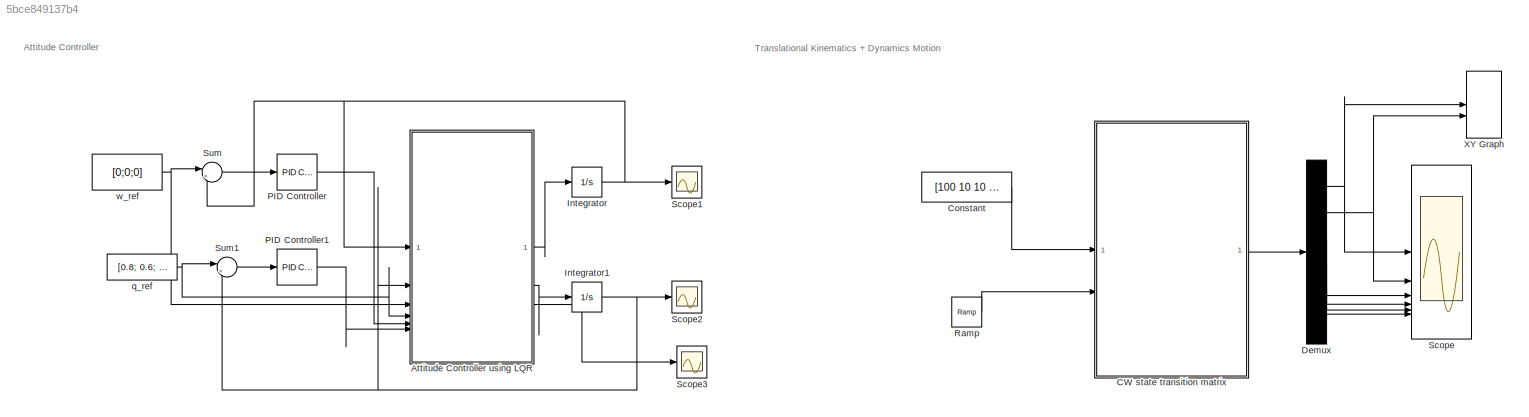
MODEL slx_5bce849137b4
KIND model
CONFIG AbsTol = auto
CONFIG EnableMultiTasking = off
CONFIG FixedStep = auto
CONFIG MaxStep = auto
CONFIG MinStep = auto
CONFIG RelTol = 1e-3
CONFIG SampleTimeConstraint = Unconstrained
CONFIG SolverName = VariableStepAuto
CONFIG StartTime = 0.0
CONFIG StopTime = 100
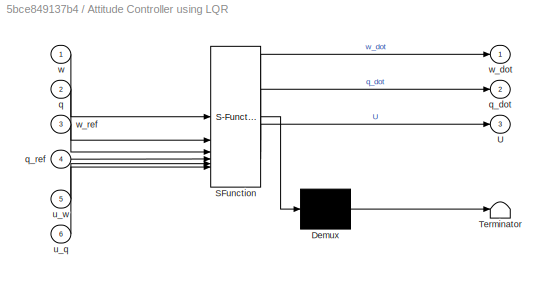
BLOCK [SubSystem] Attitude Controller using LQR
  ErrorFcn = Stateflow.Translate.translate
  PermitHierarchicalResolution = ExplicitOnly
  SFBlockType = MATLAB Function
  TreatAsAtomicUnit = on
BLOCK [Demux] Attitude Controller using LQR/ Demux 
  Outputs = 1
BLOCK [S-Function] Attitude Controller using LQR/ SFunction 
  EnableBusSupport = on
  FunctionName = sf_sfun
  PortCounts = [6 4]
  SFcnIsStateOwnerBlock = off
  SFunctionDeploymentMode = off
  Tag = Stateflow S-Function 1
BLOCK [Terminator] Attitude Controller using LQR/ Terminator 
BLOCK [Outport] Attitude Controller using LQR/U
  Port = 3
BLOCK [Inport] Attitude Controller using LQR/q
  Port = 2
BLOCK [Outport] Attitude Controller using LQR/q_dot
  Port = 2
BLOCK [Inport] Attitude Controller using LQR/q_ref
  Port = 4
BLOCK [Inport] Attitude Controller using LQR/u_q
  Port = 6
BLOCK [Inport] Attitude Controller using LQR/u_w
  Port = 5
BLOCK [Inport] Attitude Controller using LQR/w
BLOCK [Outport] Attitude Controller using LQR/w_dot
BLOCK [Inport] Attitude Controller using LQR/w_ref
  Port = 3
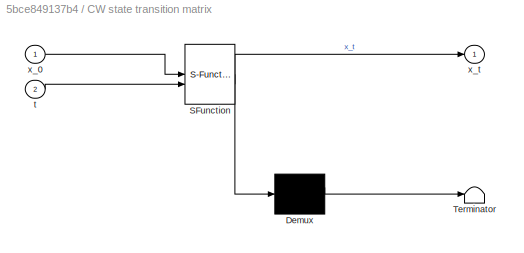
BLOCK [SubSystem] CW state transition matrix
  ErrorFcn = Stateflow.Translate.translate
  PermitHierarchicalResolution = ExplicitOnly
  SFBlockType = MATLAB Function
  TreatAsAtomicUnit = on
BLOCK [Demux] CW state transition matrix/ Demux 
  Outputs = 1
BLOCK [S-Function] CW state transition matrix/ SFunction 
  EnableBusSupport = on
  FunctionName = sf_sfun
  PortCounts = [2 2]
  SFcnIsStateOwnerBlock = off
  SFunctionDeploymentMode = off
  Tag = Stateflow S-Function 2
BLOCK [Terminator] CW state transition matrix/ Terminator 
BLOCK [Inport] CW state transition matrix/t
  Port = 2
BLOCK [Inport] CW state transition matrix/x_0
BLOCK [Outport] CW state transition matrix/x_t
BLOCK [Constant] Constant
  Value = [100 10 10 0.1 0.1 0.1]
BLOCK [Demux] Demux
  Outputs = 6
BLOCK [Integrator] Integrator
  InitialCondition = [0.7; 0.5; 0.2]
BLOCK [Integrator] Integrator1
  InitialCondition = [0.4; -0.5; 0.7]
BLOCK [Reference] PID Controller  REF=slpidlib/PID Controller
  SourceBlock = slpidlib/PID Controller
  SourceType = PID 1dof
BLOCK [Reference] PID Controller1  REF=slpidlib/PID Controller
  SourceBlock = slpidlib/PID Controller
  SourceType = PID 1dof
BLOCK [Reference] Ramp  REF=simulink/Sources/Ramp
  SourceBlock = simulink/Sources/Ramp
  SourceType = Ramp
BLOCK [Scope] Scope
  Floating = off
  NumInputPorts = 6
  ScopeSpecificationString = Simulink.scopes.TimeScopeBlockCfg('CurrentConfiguration', extmgr.ConfigurationSet(extmgr.Configuration('Core','General UI',true),extmgr.Configuration('Core','Source UI',true),extmgr.Configuration('Sources','WiredSimulink',true),extmgr.Configuration('Visuals','Time Domain',true,'SerializedDisplays',{struct('MinYLimReal','98.30222','MaxYLimReal','115.28002','YLabelReal','','MinYLimMag','98.30222','M...<+4873ch>
BLOCK [Scope] Scope1
  Floating = off
  NumInputPorts = 1
  ScopeSpecificationString = Simulink.scopes.TimeScopeBlockCfg('CurrentConfiguration', extmgr.ConfigurationSet(extmgr.Configuration('Core','General UI',true),extmgr.Configuration('Core','Source UI',true),extmgr.Configuration('Sources','WiredSimulink',true,'DataLoggingVariableName','ScopeData1'),extmgr.Configuration('Visuals','Time Domain',true,'SerializedDisplays',{struct('MinYLimReal','-0.24444','MaxYLimReal','0.80494','YLab...<+1455ch>
BLOCK [Scope] Scope2
  Floating = off
  NumInputPorts = 1
  ScopeSpecificationString = Simulink.scopes.TimeScopeBlockCfg('CurrentConfiguration', extmgr.ConfigurationSet(extmgr.Configuration('Core','General UI',true),extmgr.Configuration('Core','Source UI',true),extmgr.Configuration('Sources','WiredSimulink',true,'DataLoggingVariableName','ScopeData2'),extmgr.Configuration('Visuals','Time Domain',true,'SerializedDisplays',{struct('MinYLimReal','-1.42359','MaxYLimReal','7.81231','YLab...<+1404ch>
BLOCK [Scope] Scope3
  Floating = off
  NumInputPorts = 1
  ScopeSpecificationString = Simulink.scopes.TimeScopeBlockCfg('CurrentConfiguration', extmgr.ConfigurationSet(extmgr.Configuration('Core','General UI',true),extmgr.Configuration('Core','Source UI',true),extmgr.Configuration('Sources','WiredSimulink',true,'DataLoggingVariableName','ScopeData3'),extmgr.Configuration('Visuals','Time Domain',true,'SerializedDisplays',{struct('MinYLimReal','-0.6888','MaxYLimReal','0.09773','YLabe...<+1460ch>
BLOCK [Sum] Sum
  Inputs = |+-
BLOCK [Sum] Sum1
  Inputs = |+-
BLOCK [Record] XY Graph
  CompatibilityTag = XY
  FileSettingsInternal = {"entries":[{"content":{"excelSettings":{"content":{},"type":"Streamout.ExcelSettings"}},"type":"Streamout.FileSettingStorage","uuid":"855e9897-745d-4af3-99f6-1f36c731b809"}],"packageUris":["http://schema.mathworks.com/mf0/streamout_blocks/R2020a"],"version":"1.0"}
  Layout = [1 1]
  SignalsInternal = {"entries":[{"content":{"signals":[{"content":{"blockPath":["CW/XY Graph"],"channel":[],"dimensions":[1,1],"domain":"CW/XY Graph","lineColor":"#a2142f","plots":[1],"port":1,"sid":[""],"signalID":562,"signalName":"Demux:1"},"type":"RecordBlkView.Signal","uuid":"0cacc051-88ad-44ad-a2ea-73e43749a508"},{"content":{"blockPath":["CW/XY Graph"],"channel":[],"dimensions":[1,1],"domain":"CW/XY Graph","line...<+341ch>
  VisualizationBindings = {"xyplotplugin":{"info":[{"series":[{"bindingParametersList":[{"parameter":"X-Axis","signalID":562,"signalName":"Demux:1"},{"parameter":"Y-Axis","signalID":566,"signalName":"Demux:2"}],"seriesID":44605}],"subplotID":1}]}}
BLOCK [Constant] q_ref
  Value = [0.8; 0.6; -0.3]
BLOCK [Constant] w_ref
  Value = [0;0;0]
ANNOTATION (root): Attitude Controller
ANNOTATION (root): Translational Kinematics + Dynamics Motion
LINE Attitude Controller using LQR:1 -> Integrator:1
LINE Attitude Controller using LQR:2 -> Integrator1:1
LINE Attitude Controller using LQR:3 -> Scope3:1
LINE CW state transition matrix:1 -> Demux:1
LINE Constant:1 -> CW state transition matrix:1
NET Demux:1 -> Scope:1, XY Graph:1
NET Demux:2 -> Scope:2, XY Graph:2
LINE Demux:3 -> Scope:3
LINE Demux:4 -> Scope:4
LINE Demux:5 -> Scope:5
LINE Demux:6 -> Scope:6
NET Integrator1:1 -> Attitude Controller using LQR:2, Scope2:1, Sum1:2
NET Integrator:1 -> Attitude Controller using LQR:1, Scope1:1, Sum:2
LINE PID Controller1:1 -> Attitude Controller using LQR:6
LINE PID Controller:1 -> Attitude Controller using LQR:5
LINE Ramp:1 -> CW state transition matrix:2
LINE Sum1:1 -> PID Controller1:1
LINE Sum:1 -> PID Controller:1
NET q_ref:1 -> Attitude Controller using LQR:4, Sum1:1
NET w_ref:1 -> Attitude Controller using LQR:3, Sum:1
note: NET lines group one-source signal fan-out (src -> all destinations, sorted); 1:1 wires keep LINE
CHART Attitude Controller using LQR states=1 transitions=1
  STATE_LABEL 'eML_blk_kernel()'
  STATE_LABEL 'SCRIPT:\nfunction [w_dot,q_dot, U]= fcn(w,q,w_ref,q_ref, u_w, u_q)\n% This function is used for attitude control of the satellite. Here the\n% input is given in terms of quarterneons. \n\n%initial conditions\nq1 = q(1); \nq2 = q(2);\nq3 = q(3);\n\nw1 = w(1);\nw2 = w(2);\nw3 = w(3);\n\nstate = [w;q];\n\nJxx = 25;\nJyy = 25;\nJzz = 5;\nJ = [Jxx 0 0; 0 Jyy 0; 0 0 Jzz]; % Inertia Matrix\n\n%%%Gravity Model\n%Reference_plan...<+327ch>'
CHART CW state transition matrix states=1 transitions=1
  STATE_LABEL 'eML_blk_kernel()'
  STATE_LABEL 'SCRIPT:\nfunction x_t = fcn(x_0, t)\nR = 6.317e6;\nalt = 10e3;\nG = 6.67e-11;\nM = 5.972e24;\nmyu = G*M;\nw = (myu/(R+alt)^3)^(1/2);\nx_t = [(4-3*cos(w*t)), 0, 0, (1/w)*sin(w*t), (2/w)*(1 - cos(w*t)), 0; 6*(sin(w*t)-w*t), 1, 0, (-2/w)*(1 - cos(w*t)), (1/w)*(4*sin(w*t) - 3*w*t), 0; 0, 0, cos(w*t), 0, 0, (1/w)*sin(w*t); 3*w*sin(w*t), 0, 0, cos(w*t), 2*sin(w*t), 0; -6*w*(1-cos(w*t)), 0, 0, -2*sin(w*t), (4*co...<+55ch>'
CHART  states=0 transitions=0
CHART  states=0 transitions=0
